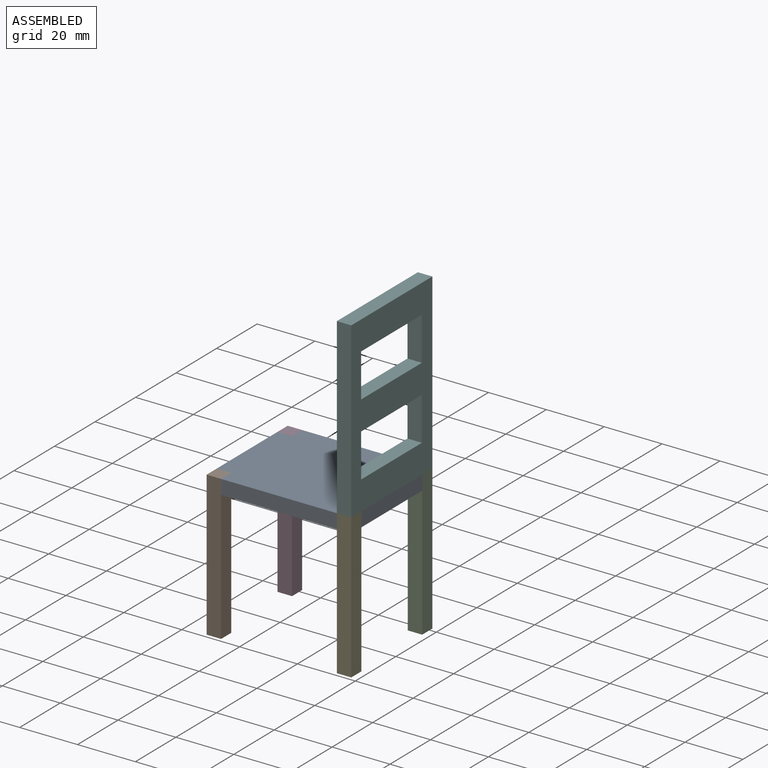
[diagram: assembled view]
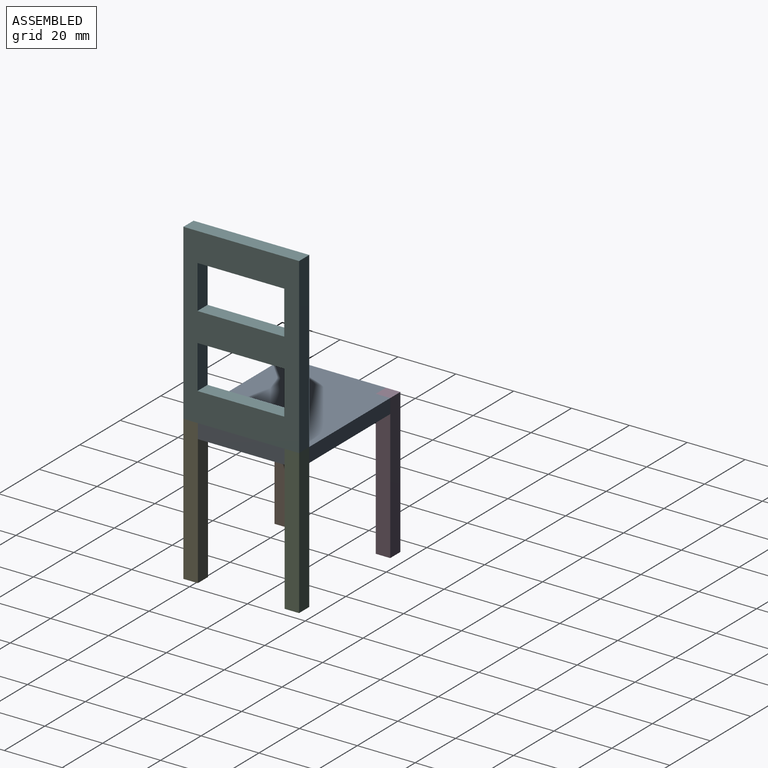
[diagram: assembled view, second angle]
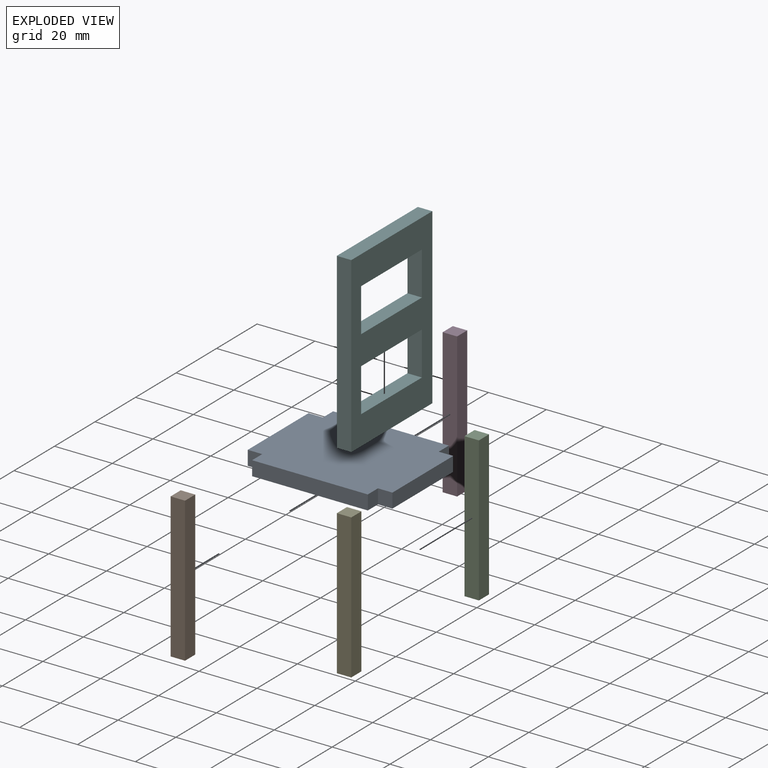
[diagram: exploded view]
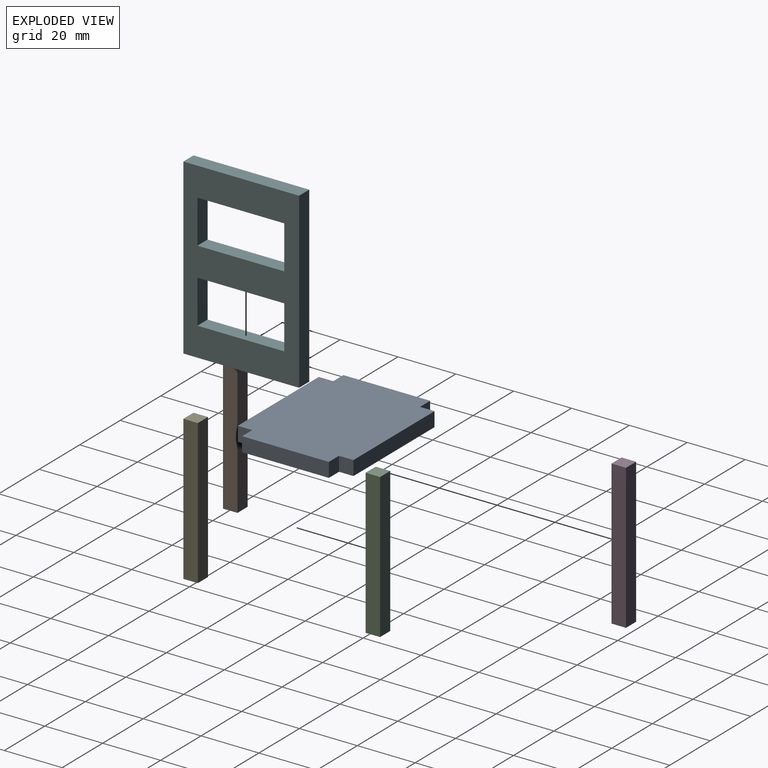
[diagram: exploded view, second angle]
ASSEMBLY  parts=6 mates=5
PART A: 14 faces, bbox 50x40x5 mm
  f0: plane 5x5mm, normal (-1,0,0), area 25mm2, adj f1,f11,f12,f13
  f1: plane 40x5mm, normal (0,-1,0), area 200mm2, adj f0,f2,f12,f13
  f2: plane 5x5mm, normal (1,0,0), area 25mm2, adj f1,f3,f12,f13
  f3: plane 5x5mm, normal (0,-1,0), area 25mm2, adj f2,f4,f12,f13
  f4: plane 30x5mm, normal (1,0,0), area 150mm2, adj f3,f5,f12,f13
  f5: plane 5x5mm, normal (0,1,0), area 25mm2, adj f4,f6,f12,f13
  f6: plane 5x5mm, normal (1,0,0), area 25mm2, adj f5,f7,f12,f13
  f7: plane 40x5mm, normal (0,1,0), area 200mm2, adj f6,f8,f12,f13
  f8: plane 5x5mm, normal (-1,0,0), area 25mm2, adj f7,f9,f12,f13
  f9: plane 5x5mm, normal (0,1,0), area 25mm2, adj f8,f10,f12,f13
  f10: plane 30x5mm, normal (-1,0,0), area 150mm2, adj f9,f11,f12,f13
  f11: plane 5x5mm, normal (0,-1,0), area 25mm2, adj f0,f10,f12,f13
  f12: plane 50x40mm, normal (0,0,1), area 1900mm2, adj f0,f1,f2,f3,f4,f5,f6,f7
  f13: plane 50x40mm, normal (0,0,-1), area 1900mm2, adj f0,f1,f2,f3,f4,f5,f6,f7
PART B: 6 faces, bbox 5x5x50 mm
  f0: plane 50x5mm, normal (-1,0,0), area 250mm2, adj f1,f3,f4,f5
  f1: plane 5x5mm, normal (0,0,-1), area 25mm2, adj f0,f2,f4,f5
  f2: plane 50x5mm, normal (1,0,0), area 250mm2, adj f1,f3,f4,f5
  f3: plane 5x5mm, normal (0,0,1), area 25mm2, adj f0,f2,f4,f5
  f4: plane 50x5mm, normal (0,-1,0), area 250mm2, adj f0,f1,f2,f3
  f5: plane 50x5mm, normal (0,1,0), area 250mm2, adj f0,f1,f2,f3
PART C: same geometry as B
PART D: same geometry as B
PART E: same geometry as B
PART F: 14 faces, bbox 40x5x60 mm
  f0: plane 60x5mm, normal (-1,0,0), area 300mm2, adj f1,f11,f12,f13
  f1: plane 40x5mm, normal (0,0,-1), area 200mm2, adj f0,f2,f12,f13
  f2: plane 60x5mm, normal (1,0,0), area 300mm2, adj f1,f11,f12,f13
  f3: plane 30x5mm, normal (0,0,1), area 150mm2, adj f4,f9,f12,f13
  f4: plane 15x5mm, normal (1,0,0), area 75mm2, adj f3,f5,f12,f13
  f5: plane 30x5mm, normal (0,0,-1), area 150mm2, adj f4,f9,f12,f13
  f6: plane 30x5mm, normal (0,0,1), area 150mm2, adj f7,f10,f12,f13
  f7: plane 15x5mm, normal (1,0,0), area 75mm2, adj f6,f8,f12,f13
  f8: plane 30x5mm, normal (0,0,-1), area 150mm2, adj f7,f10,f12,f13
  f9: plane 15x5mm, normal (-1,0,0), area 75mm2, adj f3,f5,f12,f13
  f10: plane 15x5mm, normal (-1,0,0), area 75mm2, adj f6,f8,f12,f13
  f11: plane 40x5mm, normal (0,0,1), area 200mm2, adj f0,f2,f12,f13
  f12: plane 60x40mm, normal (0,-1,0), area 1500mm2, adj f0,f1,f2,f3,f4,f5,f6,f7
  f13: plane 60x40mm, normal (0,1,0), area 1500mm2, adj f0,f1,f2,f3,f4,f5,f6,f7
PLACE A t=(13.84,-1.16,0.81)mm
PLACE B t=(14.54,-17.07,-6.61)mm
PLACE C t=(59.54,17.93,-6.61)mm
PLACE D t=(14.54,17.93,-6.61)mm
PLACE E t=(59.54,-17.07,-6.61)mm
PLACE F rot(axis=(0,0,1),90deg) t=(35.08,1.56,35.92)mm
MATE fastened A.f5 <-> C.f4  axis (0,1,0) through (37.58,12.93,5.81)mm
MATE fastened B.f5 <-> A.f11  axis (0,1,0) through (-7.42,-17.07,5.81)mm
MATE fastened F.f1 <-> A.f12  axis (0,0,-1) through (40.08,-2.07,5.81)mm
MATE fastened D.f4 <-> A.f9  axis (0,-1,0) through (-7.42,12.93,5.81)mm
MATE fastened E.f5 <-> A.f3  axis (0,1,0) through (37.58,-17.07,5.81)mm
